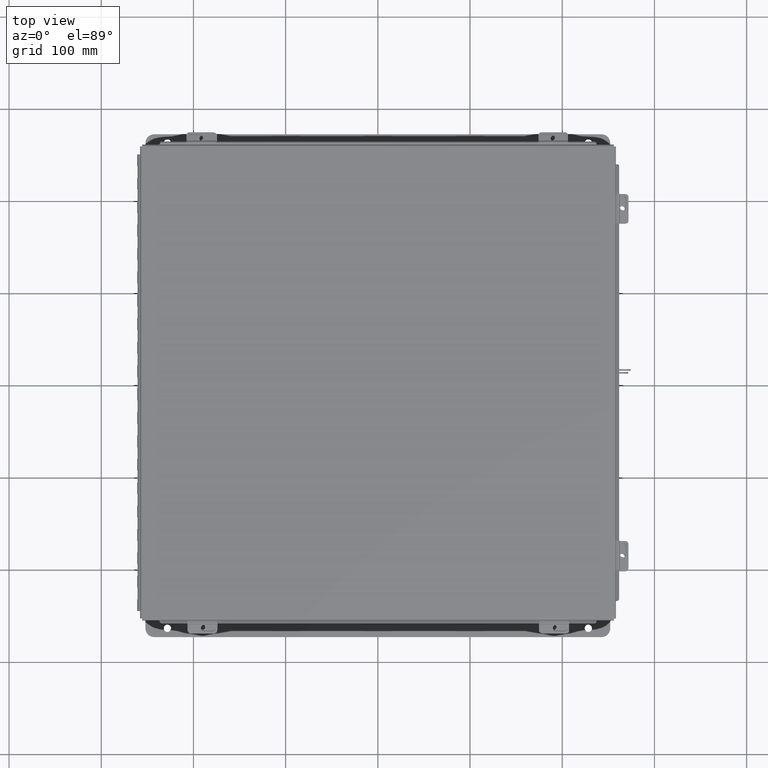
[diagram: clean part render]
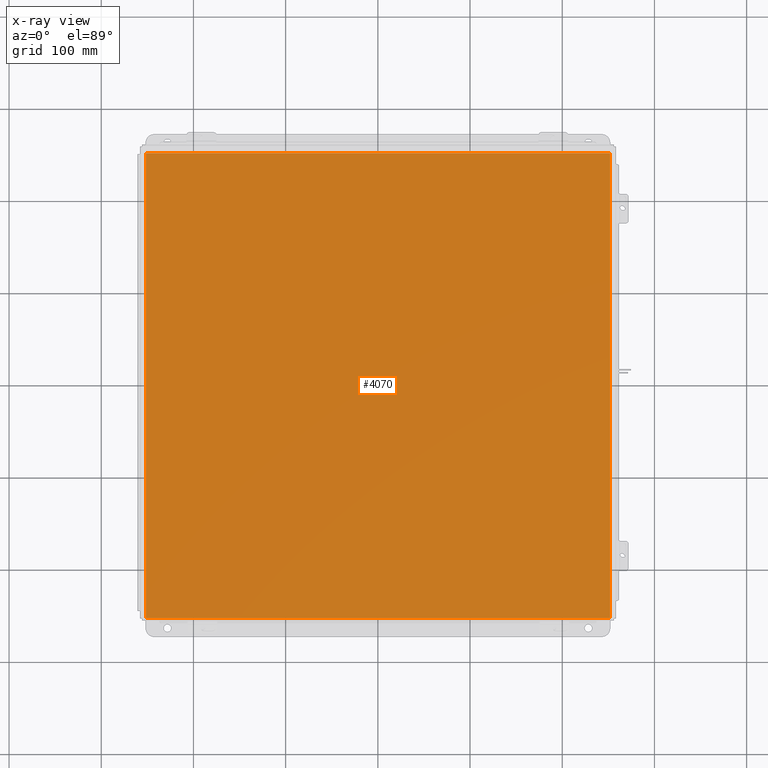
[diagram: x-ray — body ghosted, one internal face saturated and labeled with its STEP entity id]
A machine part, top view, then the same camera in x-ray: the body is ghosted and one INTERNAL B-rep face — a face not visible from any outside direction — is saturated and labeled: STEP entity #4070.
In plain terms, the highlighted planar face has unit normal (0, 0, -1).
Its self-contained STEP definition (entity closure, byte-faithful):
#656 = LINE ( 'NONE', #1433, #20709 ) ;
#1433 = CARTESIAN_POINT ( 'NONE',  ( -9.999999999999998200, 9.925300000000001800, 0.0000000000000000000 ) ) ;
#1672 = ORIENTED_EDGE ( 'NONE', *, *, #12575, .T. ) ;
#2825 = FACE_OUTER_BOUND ( 'NONE', #17532, .T. ) ;
#3438 = VERTEX_POINT ( 'NONE', #17579 ) ;
#3647 = VECTOR ( 'NONE', #17212, 39.37007874015748100 ) ;
#4070 = ADVANCED_FACE ( 'NONE', ( #2825 ), #21174, .F. ) ;
#7377 = CARTESIAN_POINT ( 'NONE',  ( -9.912299999999998300, 9.925300000000001800, 5.122214988120493500E-017 ) ) ;
#7861 = CARTESIAN_POINT ( 'NONE',  ( 9.912300000000001900, -9.925299999999998200, 5.122214988120493500E-017 ) ) ;
#8011 = LINE ( 'NONE', #10924, #21793 ) ;
#8368 = VECTOR ( 'NONE', #11807, 39.37007874015748100 ) ;
#8416 = CARTESIAN_POINT ( 'NONE',  ( 9.912300000000001900, 9.925300000000001800, 5.122214988120493500E-017 ) ) ;
#8764 = VERTEX_POINT ( 'NONE', #7861 ) ;
#9618 = VERTEX_POINT ( 'NONE', #7377 ) ;
#10858 = DIRECTION ( 'NONE',  ( -0.0000000000000000000, 1.000000000000000000, -0.0000000000000000000 ) ) ;
#10924 = CARTESIAN_POINT ( 'NONE',  ( -9.912299999999998300, -9.925299999999998200, 5.122214988120493500E-017 ) ) ;
#11624 = EDGE_CURVE ( 'NONE', #16937, #9618, #8011, .T. ) ;
#11807 = DIRECTION ( 'NONE',  ( -0.0000000000000000000, -1.000000000000000000, -0.0000000000000000000 ) ) ;
#11948 = CARTESIAN_POINT ( 'NONE',  ( -9.912299999999998300, -9.925299999999992900, 5.122214988120493500E-017 ) ) ;
#12575 = EDGE_CURVE ( 'NONE', #3438, #9618, #656, .T. ) ;
#12650 = EDGE_CURVE ( 'NONE', #16937, #8764, #15054, .T. ) ;
#14464 = AXIS2_PLACEMENT_3D ( 'NONE', #21336, #15817, #20639 ) ;
#15054 = LINE ( 'NONE', #15461, #3647 ) ;
#15461 = CARTESIAN_POINT ( 'NONE',  ( -9.999999999999998200, -9.925299999999998200, 0.0000000000000000000 ) ) ;
#15817 = DIRECTION ( 'NONE',  ( 0.0000000000000000000, 0.0000000000000000000, -1.000000000000000000 ) ) ;
#16491 = LINE ( 'NONE', #8416, #8368 ) ;
#16902 = EDGE_CURVE ( 'NONE', #3438, #8764, #16491, .T. ) ;
#16937 = VERTEX_POINT ( 'NONE', #11948 ) ;
#17212 = DIRECTION ( 'NONE',  ( 1.000000000000000000, 0.0000000000000000000, 0.0000000000000000000 ) ) ;
#17532 = EDGE_LOOP ( 'NONE', ( #21453, #1672, #18006, #20970 ) ) ;
#17579 = CARTESIAN_POINT ( 'NONE',  ( 9.912300000000001900, 9.925299999999998200, 5.122214988120493500E-017 ) ) ;
#18006 = ORIENTED_EDGE ( 'NONE', *, *, #11624, .F. ) ;
#20639 = DIRECTION ( 'NONE',  ( -1.000000000000000000, 0.0000000000000000000, -0.0000000000000000000 ) ) ;
#20709 = VECTOR ( 'NONE', #22188, 39.37007874015748100 ) ;
#20970 = ORIENTED_EDGE ( 'NONE', *, *, #12650, .T. ) ;
#21174 = PLANE ( 'NONE',  #14464 ) ;
#21336 = CARTESIAN_POINT ( 'NONE',  ( 0.0000000000000000000, 0.0000000000000000000, 0.0000000000000000000 ) ) ;
#21453 = ORIENTED_EDGE ( 'NONE', *, *, #16902, .F. ) ;
#21793 = VECTOR ( 'NONE', #10858, 39.37007874015748100 ) ;
#22188 = DIRECTION ( 'NONE',  ( -1.000000000000000000, -0.0000000000000000000, -0.0000000000000000000 ) ) ;